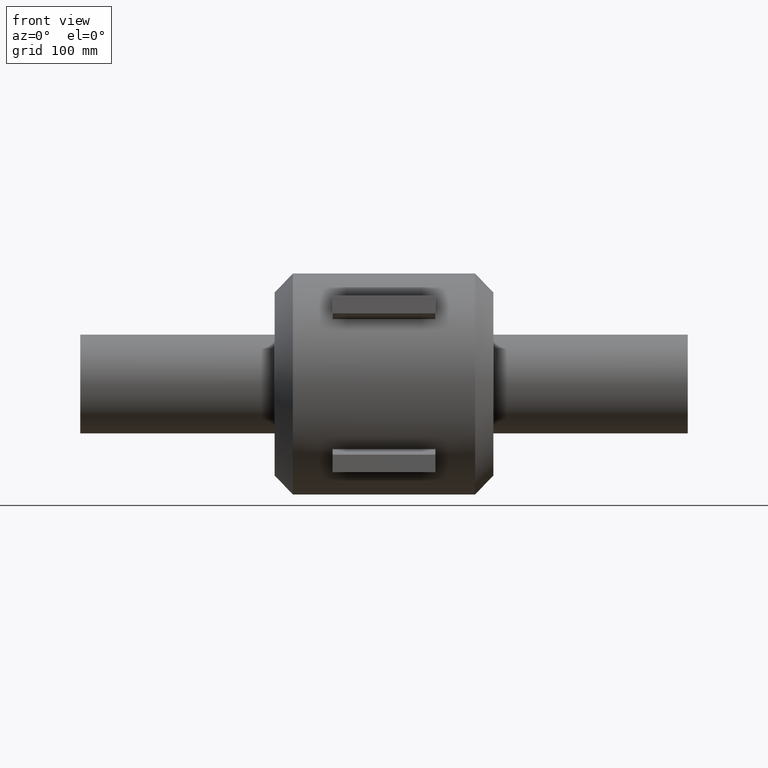
[diagram: clean part render]
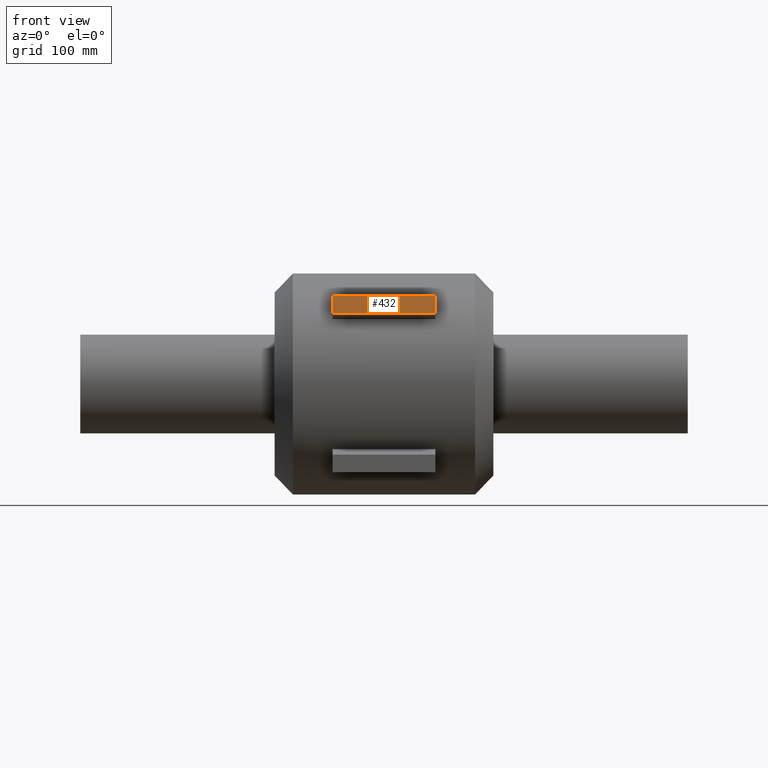
[diagram: same view with one face highlighted and labeled with its STEP entity id]
A machine part, front view. The second image highlights one B-rep face of the part: STEP entity #432.
In plain terms, the highlighted planar face has unit normal (0, -1, -0).
Its self-contained STEP definition (entity closure, byte-faithful):
#27=PLANE('',#482);
#52=LINE('',#894,#72);
#54=LINE('',#898,#74);
#55=LINE('',#901,#75);
#56=LINE('',#902,#76);
#72=VECTOR('',#588,16.);
#74=VECTOR('',#592,93.);
#75=VECTOR('',#595,16.);
#76=VECTOR('',#596,93.);
#131=FACE_OUTER_BOUND('',#176,.T.);
#176=EDGE_LOOP('',(#378,#379,#380,#381));
#254=VERTEX_POINT('',#890);
#255=VERTEX_POINT('',#892);
#256=VERTEX_POINT('',#896);
#257=VERTEX_POINT('',#900);
#300=EDGE_CURVE('',#255,#254,#52,.T.);
#302=EDGE_CURVE('',#255,#256,#54,.T.);
#303=EDGE_CURVE('',#257,#256,#55,.T.);
#304=EDGE_CURVE('',#254,#257,#56,.T.);
#378=ORIENTED_EDGE('',*,*,#302,.T.);
#379=ORIENTED_EDGE('',*,*,#303,.F.);
#380=ORIENTED_EDGE('',*,*,#304,.F.);
#381=ORIENTED_EDGE('',*,*,#300,.F.);
#432=ADVANCED_FACE('',(#131),#27,.T.);
#482=AXIS2_PLACEMENT_3D('',#899,#593,#594);
#588=DIRECTION('',(0.,-2.22044604925031E-15,1.));
#592=DIRECTION('',(1.,0.,0.));
#593=DIRECTION('center_axis',(0.,-1.,-2.22044604925031E-15));
#594=DIRECTION('ref_axis',(0.,2.8421709430404E-15,-1.));
#595=DIRECTION('',(0.,2.22044604925031E-15,-1.));
#596=DIRECTION('',(1.,0.,0.));
#890=CARTESIAN_POINT('',(-46.5,-110.,80.));
#892=CARTESIAN_POINT('',(-46.5,-110.,64.));
#894=CARTESIAN_POINT('',(-46.5,-110.,80.));
#896=CARTESIAN_POINT('',(46.5,-110.,64.));
#898=CARTESIAN_POINT('',(0.,-110.,64.));
#899=CARTESIAN_POINT('Origin',(0.,-110.,80.));
#900=CARTESIAN_POINT('',(46.5,-110.,80.));
#901=CARTESIAN_POINT('',(46.5,-110.,80.));
#902=CARTESIAN_POINT('',(0.,-110.,80.));